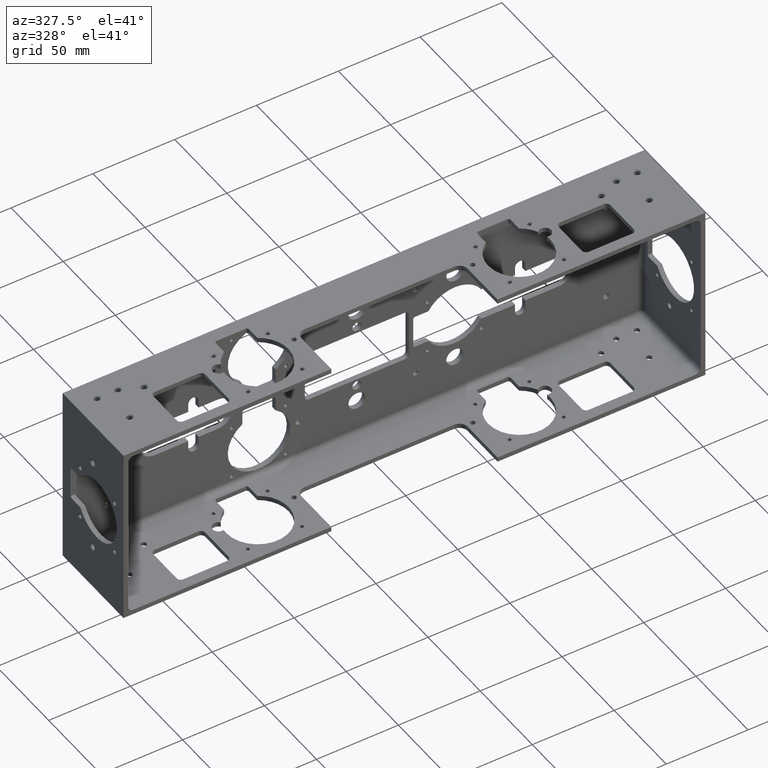
[diagram: clean part render]
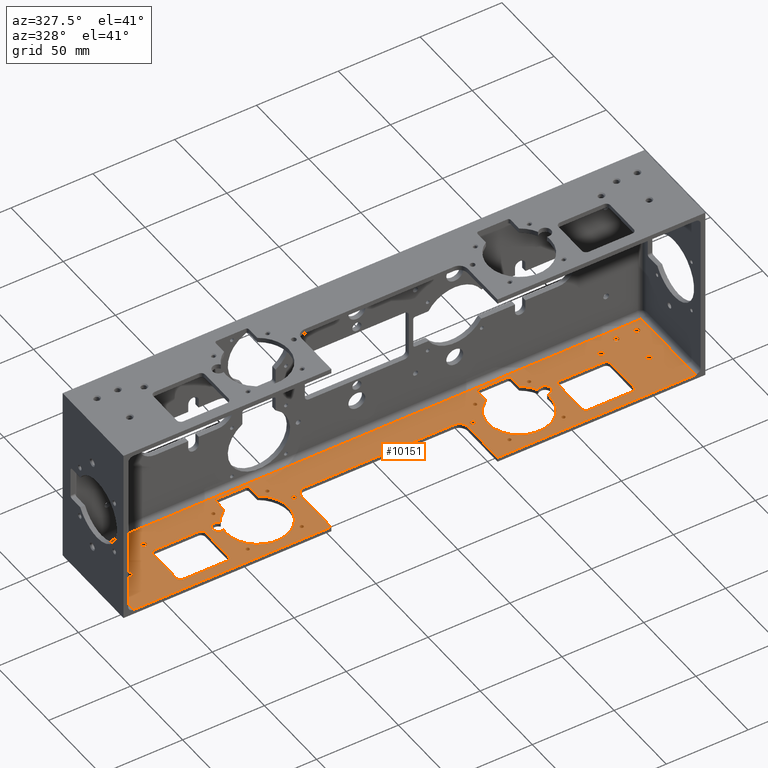
[diagram: same view with one face highlighted and labeled with its STEP entity id]
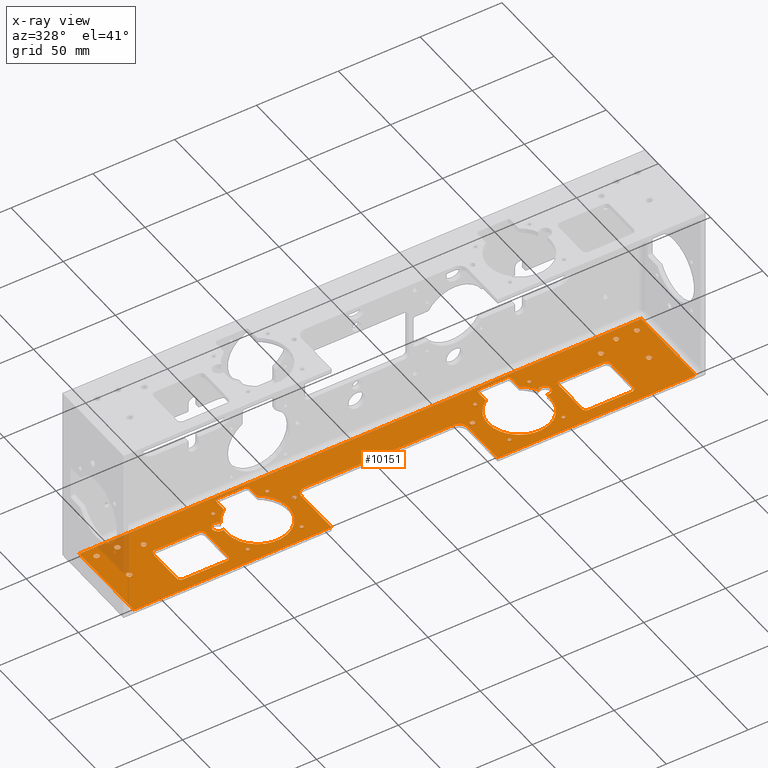
[diagram: x-ray of the same camera — body ghosted, the highlighted face saturated]
A machine part, auxiliary view. The second image highlights one B-rep face of the part: STEP entity #10151.
The next image is the same camera in x-ray: the body ghosted, the highlighted face saturated — about 3% of this face is hidden behind the body in this view.
In plain terms, the highlighted planar face has unit normal (0, 0, -1).
Its self-contained STEP definition (entity closure, byte-faithful):
#18 = DIRECTION ( 'NONE',  ( 0.0000000000000000000, -1.000000000000000000, 0.0000000000000000000 ) ) ;
#28 = CARTESIAN_POINT ( 'NONE',  ( 4.349999999999999600, -1.950000000000000000, -2.067000000000000200 ) ) ;
#36 = DIRECTION ( 'NONE',  ( -1.000000000000000000, 0.0000000000000000000, 0.0000000000000000000 ) ) ;
#72 = DIRECTION ( 'NONE',  ( 0.0000000000000000000, 0.0000000000000000000, -1.000000000000000000 ) ) ;
#83 = CARTESIAN_POINT ( 'NONE',  ( 6.000000000000000900, -0.5000000000000034400, -2.067000000000000200 ) ) ;
#113 = CARTESIAN_POINT ( 'NONE',  ( 2.749000000000000100, 14.38099551491481300, -2.067000000000000200 ) ) ;
#129 = CARTESIAN_POINT ( 'NONE',  ( -5.400000000000004800, -1.949999999999979500, -2.067000000000000200 ) ) ;
#136 = DIRECTION ( 'NONE',  ( -1.000000000000000000, 0.0000000000000000000, 0.0000000000000000000 ) ) ;
#150 = DIRECTION ( 'NONE',  ( 0.0000000000000000000, 0.0000000000000000000, -1.000000000000000000 ) ) ;
#155 = DIRECTION ( 'NONE',  ( 0.0000000000000000000, -1.000000000000000000, 0.0000000000000000000 ) ) ;
#156 = CARTESIAN_POINT ( 'NONE',  ( 3.148999999999999100, -1.315000000000001700, -2.067000000000000200 ) ) ;
#162 = DIRECTION ( 'NONE',  ( -1.000000000000000000, 0.0000000000000000000, 0.0000000000000000000 ) ) ;
#204 = DIRECTION ( 'NONE',  ( -1.000000000000000000, 0.0000000000000000000, 0.0000000000000000000 ) ) ;
#206 = DIRECTION ( 'NONE',  ( -1.000000000000000000, 0.0000000000000000000, 0.0000000000000000000 ) ) ;
#213 = CARTESIAN_POINT ( 'NONE',  ( 6.887000000000000500, -2.299999999999999800, -2.067000000000000200 ) ) ;
#219 = DIRECTION ( 'NONE',  ( 1.000000000000000000, 0.0000000000000000000, 0.0000000000000000000 ) ) ;
#220 = DIRECTION ( 'NONE',  ( 0.0000000000000000000, 0.0000000000000000000, -1.000000000000000000 ) ) ;
#227 = CARTESIAN_POINT ( 'NONE',  ( 6.250000000000000000, -1.344000000000003200, -2.067000000000000200 ) ) ;
#237 = CARTESIAN_POINT ( 'NONE',  ( -3.798999999999999900, -0.6650000000000000400, -2.067000000000000200 ) ) ;
#257 = CARTESIAN_POINT ( 'NONE',  ( 3.499000000000001000, -0.3650000000000014300, -2.067000000000000200 ) ) ;
#258 = CARTESIAN_POINT ( 'NONE',  ( 6.887000000000004000, -2.050000000000000300, -2.067000000000000200 ) ) ;
#260 = DIRECTION ( 'NONE',  ( 0.0000000000000000000, 0.0000000000000000000, -1.000000000000000000 ) ) ;
#266 = CARTESIAN_POINT ( 'NONE',  ( 3.930299999999999500, -1.065748031496065700, -2.067000000000000200 ) ) ;
#282 = DIRECTION ( 'NONE',  ( 0.0000000000000000000, 0.0000000000000000000, -1.000000000000000000 ) ) ;
#288 = DIRECTION ( 'NONE',  ( -1.000000000000000000, 0.0000000000000000000, 0.0000000000000000000 ) ) ;
#302 = DIRECTION ( 'NONE',  ( -1.000000000000000000, -2.601759993965967900E-016, 0.0000000000000000000 ) ) ;
#311 = DIRECTION ( 'NONE',  ( -1.000000000000000000, 0.0000000000000000000, 0.0000000000000000000 ) ) ;
#318 = DIRECTION ( 'NONE',  ( 0.0000000000000000000, 1.000000000000000000, 0.0000000000000000000 ) ) ;
#320 = CARTESIAN_POINT ( 'NONE',  ( 6.886999999999996000, -0.3150000000000036100, -2.067000000000000200 ) ) ;
#346 = CARTESIAN_POINT ( 'NONE',  ( -2.499000000000000100, -1.964999999999999900, -2.067000000000000200 ) ) ;
#349 = DIRECTION ( 'NONE',  ( 0.0000000000000000000, 0.0000000000000000000, -1.000000000000000000 ) ) ;
#368 = DIRECTION ( 'NONE',  ( -1.000000000000000000, 0.0000000000000000000, 0.0000000000000000000 ) ) ;
#388 = DIRECTION ( 'NONE',  ( -1.000000000000000000, 0.0000000000000000000, 0.0000000000000000000 ) ) ;
#396 = CARTESIAN_POINT ( 'NONE',  ( 2.798999999999999900, -0.3650000000000011600, -2.067000000000000200 ) ) ;
#398 = DIRECTION ( 'NONE',  ( 0.0000000000000000000, 0.0000000000000000000, -1.000000000000000000 ) ) ;
#405 = DIRECTION ( 'NONE',  ( -1.000000000000000000, 0.0000000000000000000, 0.0000000000000000000 ) ) ;
#434 = DIRECTION ( 'NONE',  ( -1.000000000000000000, 0.0000000000000000000, 0.0000000000000000000 ) ) ;
#438 = CARTESIAN_POINT ( 'NONE',  ( 3.148999999999999100, -1.315000000000001700, -2.067000000000000200 ) ) ;
#442 = DIRECTION ( 'NONE',  ( -1.000000000000000000, 0.0000000000000000000, 0.0000000000000000000 ) ) ;
#445 = DIRECTION ( 'NONE',  ( 0.0000000000000000000, 0.0000000000000000000, -1.000000000000000000 ) ) ;
#451 = DIRECTION ( 'NONE',  ( -1.000000000000000000, 0.0000000000000000000, 0.0000000000000000000 ) ) ;
#461 = DIRECTION ( 'NONE',  ( 0.0000000000000000000, 0.0000000000000000000, -1.000000000000000000 ) ) ;
#465 = DIRECTION ( 'NONE',  ( -1.000000000000000000, 0.0000000000000000000, 0.0000000000000000000 ) ) ;
#473 = DIRECTION ( 'NONE',  ( 0.0000000000000000000, 0.0000000000000000000, -1.000000000000000000 ) ) ;
#477 = CARTESIAN_POINT ( 'NONE',  ( 3.549000000000000800, 14.38099551491481300, -2.067000000000000200 ) ) ;
#492 = DIRECTION ( 'NONE',  ( 0.0000000000000000000, 0.0000000000000000000, -1.000000000000000000 ) ) ;
#513 = DIRECTION ( 'NONE',  ( -1.000000000000000000, 0.0000000000000000000, 0.0000000000000000000 ) ) ;
#526 = CARTESIAN_POINT ( 'NONE',  ( 2.498999999999999200, -1.964999999999999900, -2.067000000000000200 ) ) ;
#529 = CARTESIAN_POINT ( 'NONE',  ( 3.798999999999999000, -0.6650000000000000400, -2.067000000000000200 ) ) ;
#532 = DIRECTION ( 'NONE',  ( 1.000000000000000000, -2.926979993211706200E-016, 0.0000000000000000000 ) ) ;
#537 = CARTESIAN_POINT ( 'NONE',  ( 3.148999999999999100, -1.315000000000001700, -2.067000000000000200 ) ) ;
#540 = DIRECTION ( 'NONE',  ( 0.0000000000000000000, 0.0000000000000000000, -1.000000000000000000 ) ) ;
#543 = DIRECTION ( 'NONE',  ( 0.0000000000000000000, 1.000000000000000000, 0.0000000000000000000 ) ) ;
#546 = CARTESIAN_POINT ( 'NONE',  ( 4.250000000000000000, 14.38099551491481300, -2.067000000000000200 ) ) ;
#550 = CARTESIAN_POINT ( 'NONE',  ( 6.250000000000000000, -1.344000000000003200, -2.067000000000000200 ) ) ;
#566 = DIRECTION ( 'NONE',  ( 0.0000000000000000000, 0.0000000000000000000, -1.000000000000000000 ) ) ;
#569 = DIRECTION ( 'NONE',  ( 0.0000000000000000000, -1.000000000000000000, 0.0000000000000000000 ) ) ;
#589 = DIRECTION ( 'NONE',  ( 0.0000000000000000000, 0.0000000000000000000, -1.000000000000000000 ) ) ;
#610 = CARTESIAN_POINT ( 'NONE',  ( -4.349999999999999600, -1.070000000000000500, -2.067000000000000200 ) ) ;
#637 = CARTESIAN_POINT ( 'NONE',  ( -2.748999999999999700, 14.38099551491481300, -2.067000000000000200 ) ) ;
#649 = DIRECTION ( 'NONE',  ( 0.0000000000000000000, 0.0000000000000000000, -1.000000000000000000 ) ) ;
#668 = DIRECTION ( 'NONE',  ( 0.0000000000000000000, 0.0000000000000000000, -1.000000000000000000 ) ) ;
#675 = DIRECTION ( 'NONE',  ( -1.000000000000000000, 0.0000000000000000000, 0.0000000000000000000 ) ) ;
#692 = DIRECTION ( 'NONE',  ( 0.0000000000000000000, 0.0000000000000000000, -1.000000000000000000 ) ) ;
#695 = CARTESIAN_POINT ( 'NONE',  ( 5.500000000000000000, 14.38099551491481300, -2.067000000000000200 ) ) ;
#724 = CARTESIAN_POINT ( 'NONE',  ( -6.500000000000000000, -0.5000000000000000000, -2.067000000000000200 ) ) ;
#782 = DIRECTION ( 'NONE',  ( -1.000000000000000000, 0.0000000000000000000, 0.0000000000000000000 ) ) ;
#827 = ORIENTED_EDGE ( 'NONE', *, *, #13892, .T. ) ;
#870 = ORIENTED_EDGE ( 'NONE', *, *, #7307, .T. ) ;
#878 = ORIENTED_EDGE ( 'NONE', *, *, #7317, .T. ) ;
#884 = ORIENTED_EDGE ( 'NONE', *, *, #13923, .T. ) ;
#916 = ORIENTED_EDGE ( 'NONE', *, *, #7442, .T. ) ;
#919 = ORIENTED_EDGE ( 'NONE', *, *, #7270, .T. ) ;
#946 = ORIENTED_EDGE ( 'NONE', *, *, #7557, .T. ) ;
#949 = ORIENTED_EDGE ( 'NONE', *, *, #7844, .T. ) ;
#962 = ORIENTED_EDGE ( 'NONE', *, *, #7332, .T. ) ;
#987 = ORIENTED_EDGE ( 'NONE', *, *, #7746, .T. ) ;
#1063 = ORIENTED_EDGE ( 'NONE', *, *, #7180, .T. ) ;
#1076 = ORIENTED_EDGE ( 'NONE', *, *, #7726, .T. ) ;
#1114 = ORIENTED_EDGE ( 'NONE', *, *, #7404, .T. ) ;
#1126 = ORIENTED_EDGE ( 'NONE', *, *, #7057, .T. ) ;
#1129 = ORIENTED_EDGE ( 'NONE', *, *, #7105, .T. ) ;
#1134 = ORIENTED_EDGE ( 'NONE', *, *, #7227, .T. ) ;
#1181 = ORIENTED_EDGE ( 'NONE', *, *, #7592, .T. ) ;
#1195 = ORIENTED_EDGE ( 'NONE', *, *, #7603, .T. ) ;
#1232 = ORIENTED_EDGE ( 'NONE', *, *, #13818, .T. ) ;
#1237 = ORIENTED_EDGE ( 'NONE', *, *, #7328, .T. ) ;
#1248 = ORIENTED_EDGE ( 'NONE', *, *, #13893, .T. ) ;
#1249 = ORIENTED_EDGE ( 'NONE', *, *, #7376, .T. ) ;
#1271 = ORIENTED_EDGE ( 'NONE', *, *, #7602, .T. ) ;
#1295 = ORIENTED_EDGE ( 'NONE', *, *, #13907, .T. ) ;
#1301 = ORIENTED_EDGE ( 'NONE', *, *, #7543, .T. ) ;
#1308 = ORIENTED_EDGE ( 'NONE', *, *, #7666, .T. ) ;
#1327 = ORIENTED_EDGE ( 'NONE', *, *, #6981, .T. ) ;
#1374 = ORIENTED_EDGE ( 'NONE', *, *, #7495, .T. ) ;
#1379 = ORIENTED_EDGE ( 'NONE', *, *, #7576, .T. ) ;
#1385 = ORIENTED_EDGE ( 'NONE', *, *, #7677, .T. ) ;
#1386 = ORIENTED_EDGE ( 'NONE', *, *, #7574, .T. ) ;
#1405 = ORIENTED_EDGE ( 'NONE', *, *, #7770, .T. ) ;
#1407 = ORIENTED_EDGE ( 'NONE', *, *, #7089, .T. ) ;
#1424 = ORIENTED_EDGE ( 'NONE', *, *, #7296, .T. ) ;
#1426 = ORIENTED_EDGE ( 'NONE', *, *, #13894, .T. ) ;
#1427 = ORIENTED_EDGE ( 'NONE', *, *, #7191, .T. ) ;
#1429 = ORIENTED_EDGE ( 'NONE', *, *, #7559, .T. ) ;
#1434 = ORIENTED_EDGE ( 'NONE', *, *, #7067, .T. ) ;
#1435 = ORIENTED_EDGE ( 'NONE', *, *, #7534, .T. ) ;
#1436 = ORIENTED_EDGE ( 'NONE', *, *, #7398, .T. ) ;
#1437 = ORIENTED_EDGE ( 'NONE', *, *, #7348, .T. ) ;
#1504 = ORIENTED_EDGE ( 'NONE', *, *, #7073, .T. ) ;
#1526 = ORIENTED_EDGE ( 'NONE', *, *, #7533, .T. ) ;
#1586 = ORIENTED_EDGE ( 'NONE', *, *, #13887, .T. ) ;
#1636 = ORIENTED_EDGE ( 'NONE', *, *, #7372, .T. ) ;
#1645 = ORIENTED_EDGE ( 'NONE', *, *, #7504, .T. ) ;
#1676 = ORIENTED_EDGE ( 'NONE', *, *, #7207, .T. ) ;
#1679 = ORIENTED_EDGE ( 'NONE', *, *, #13924, .T. ) ;
#1682 = ORIENTED_EDGE ( 'NONE', *, *, #13821, .T. ) ;
#1686 = ORIENTED_EDGE ( 'NONE', *, *, #7094, .T. ) ;
#1687 = ORIENTED_EDGE ( 'NONE', *, *, #7566, .T. ) ;
#1692 = ORIENTED_EDGE ( 'NONE', *, *, #14106, .T. ) ;
#1698 = ORIENTED_EDGE ( 'NONE', *, *, #7355, .T. ) ;
#1714 = ORIENTED_EDGE ( 'NONE', *, *, #7483, .T. ) ;
#1725 = ORIENTED_EDGE ( 'NONE', *, *, #7635, .T. ) ;
#1730 = ORIENTED_EDGE ( 'NONE', *, *, #7789, .T. ) ;
#1751 = CARTESIAN_POINT ( 'NONE',  ( 5.500000000000000000, -1.949999999999999100, -2.067000000000000200 ) ) ;
#1753 = CARTESIAN_POINT ( 'NONE',  ( -2.000000000000000000, -2.299999999999999400, -2.067000000000000200 ) ) ;
#1757 = CARTESIAN_POINT ( 'NONE',  ( -2.000000000000000400, -1.169999999999998800, -2.067000000000000200 ) ) ;
#1774 = CARTESIAN_POINT ( 'NONE',  ( -3.890615323850029000, -1.203166590721658000, -2.067000000000001100 ) ) ;
#1805 = CARTESIAN_POINT ( 'NONE',  ( 3.499000000000001000, -0.3150000000000014500, -2.067000000000001100 ) ) ;
#1807 = CARTESIAN_POINT ( 'NONE',  ( -2.798999999999999900, -0.3149999999999996700, -2.067000000000001100 ) ) ;
#1815 = CARTESIAN_POINT ( 'NONE',  ( -5.400000000000003900, -2.049999999999979400, -2.067000000000000200 ) ) ;
#1821 = CARTESIAN_POINT ( 'NONE',  ( 4.350000000000000500, -2.049999999999999800, -2.067000000000000200 ) ) ;
#1827 = CARTESIAN_POINT ( 'NONE',  ( 4.349999999999999600, -0.9699999999999995300, -2.067000000000000200 ) ) ;
#1829 = CARTESIAN_POINT ( 'NONE',  ( -6.762000000000000500, -0.2500000000000000600, -2.067000000000000200 ) ) ;
#1836 = CARTESIAN_POINT ( 'NONE',  ( -5.399999999999999500, -0.9700000000000009700, -2.067000000000000200 ) ) ;
#1858 = CARTESIAN_POINT ( 'NONE',  ( -4.250000000000004400, -1.949999999999983300, -2.067000000000000200 ) ) ;
#1860 = CARTESIAN_POINT ( 'NONE',  ( 1.799999999999999400, -0.9699999999999989700, -2.067000000000000200 ) ) ;
#1888 = CARTESIAN_POINT ( 'NONE',  ( -4.350000000000005000, -2.049999999999983400, -2.067000000000000200 ) ) ;
#1935 = CARTESIAN_POINT ( 'NONE',  ( -2.749000000000000100, -0.6805711229775243100, -2.067000000000001100 ) ) ;
#1946 = CARTESIAN_POINT ( 'NONE',  ( -5.500000000000004400, -1.949999999999978400, -2.067000000000000200 ) ) ;
#1960 = CARTESIAN_POINT ( 'NONE',  ( 6.500000000000000000, -0.5000000000000036600, -2.067000000000000200 ) ) ;
#1961 = DIRECTION ( 'NONE',  ( 0.0000000000000000000, 0.0000000000000000000, -1.000000000000000000 ) ) ;
#1963 = DIRECTION ( 'NONE',  ( -1.000000000000000000, 0.0000000000000000000, 0.0000000000000000000 ) ) ;
#1971 = CARTESIAN_POINT ( 'NONE',  ( -2.499000000000000100, -0.6650000000000000400, -2.067000000000000200 ) ) ;
#1984 = DIRECTION ( 'NONE',  ( 0.0000000000000000000, 0.0000000000000000000, -1.000000000000000000 ) ) ;
#1986 = DIRECTION ( 'NONE',  ( -1.000000000000000000, 0.0000000000000000000, 0.0000000000000000000 ) ) ;
#1990 = CARTESIAN_POINT ( 'NONE',  ( -5.500000000000000000, -0.7086614173228346100, -2.067000000000000200 ) ) ;
#2051 = DIRECTION ( 'NONE',  ( 0.0000000000000000000, 0.0000000000000000000, -1.000000000000000000 ) ) ;
#2056 = DIRECTION ( 'NONE',  ( -1.000000000000000000, 0.0000000000000000000, 0.0000000000000000000 ) ) ;
#2140 = DIRECTION ( 'NONE',  ( -1.000000000000000000, -0.0000000000000000000, -0.0000000000000000000 ) ) ;
#2190 = CARTESIAN_POINT ( 'NONE',  ( 2.749000000000000100, -0.6805711229775256400, -2.067000000000001100 ) ) ;
#2645 = CARTESIAN_POINT ( 'NONE',  ( -6.887000000000000500, -0.2500000000000000600, -2.067000000000000200 ) ) ;
#2692 = DIRECTION ( 'NONE',  ( 0.0000000000000000000, 0.0000000000000000000, -1.000000000000000000 ) ) ;
#2693 = CARTESIAN_POINT ( 'NONE',  ( -2.150000000000000400, -1.120669297480314700, -2.067000000000000200 ) ) ;
#2703 = CARTESIAN_POINT ( 'NONE',  ( 1.999999999999990200, 14.38099551491481200, -2.067000000000000200 ) ) ;
#2705 = DIRECTION ( 'NONE',  ( 6.162063143603598100E-016, -1.000000000000000000, 0.0000000000000000000 ) ) ;
#2711 = DIRECTION ( 'NONE',  ( -1.000000000000000000, 0.0000000000000000000, 0.0000000000000000000 ) ) ;
#2728 = DIRECTION ( 'NONE',  ( -1.000000000000000000, 0.0000000000000000000, 0.0000000000000000000 ) ) ;
#2731 = DIRECTION ( 'NONE',  ( 0.0000000000000000000, 0.0000000000000000000, -1.000000000000000000 ) ) ;
#2738 = CARTESIAN_POINT ( 'NONE',  ( 6.887000000000004000, -0.9699999999999975300, -2.067000000000000200 ) ) ;
#2740 = DIRECTION ( 'NONE',  ( 1.000000000000000000, 2.731847993664263200E-016, 0.0000000000000000000 ) ) ;
#2742 = DIRECTION ( 'NONE',  ( 0.0000000000000000000, 0.0000000000000000000, -1.000000000000000000 ) ) ;
#2744 = DIRECTION ( 'NONE',  ( 0.0000000000000000000, 0.0000000000000000000, -1.000000000000000000 ) ) ;
#2747 = DIRECTION ( 'NONE',  ( 0.0000000000000000000, -1.000000000000000000, 0.0000000000000000000 ) ) ;
#2750 = CARTESIAN_POINT ( 'NONE',  ( -3.499000000000001000, -0.3149999999999995000, -2.067000000000001100 ) ) ;
#2758 = DIRECTION ( 'NONE',  ( 0.0000000000000000000, 0.0000000000000000000, -1.000000000000000000 ) ) ;
#2759 = DIRECTION ( 'NONE',  ( -1.000000000000000000, 0.0000000000000000000, 0.0000000000000000000 ) ) ;
#2768 = CARTESIAN_POINT ( 'NONE',  ( -3.149000000000000000, -1.314999999999999900, -2.067000000000000200 ) ) ;
#2769 = DIRECTION ( 'NONE',  ( -1.000000000000000000, 0.0000000000000000000, 0.0000000000000000000 ) ) ;
#2774 = CARTESIAN_POINT ( 'NONE',  ( -3.930300000000000300, -1.065748031496063500, -2.067000000000000200 ) ) ;
#2783 = CARTESIAN_POINT ( 'NONE',  ( -3.149000000000000000, -1.314999999999999900, -2.067000000000000200 ) ) ;
#2787 = CARTESIAN_POINT ( 'NONE',  ( -6.762000000000000500, -2.299999999999998900, -2.067000000000000200 ) ) ;
#2788 = CARTESIAN_POINT ( 'NONE',  ( -3.798999999999999900, -1.964999999999999900, -2.067000000000000200 ) ) ;
#2791 = CARTESIAN_POINT ( 'NONE',  ( -3.499000000000001000, -0.3649999999999995500, -2.067000000000000200 ) ) ;
#2809 = CARTESIAN_POINT ( 'NONE',  ( 3.549000000000000800, -0.3650000000000014300, -2.067000000000001100 ) ) ;
#2811 = DIRECTION ( 'NONE',  ( -1.000000000000000000, 0.0000000000000000000, 0.0000000000000000000 ) ) ;
#2820 = DIRECTION ( 'NONE',  ( 0.0000000000000000000, 0.0000000000000000000, -1.000000000000000000 ) ) ;
#2827 = DIRECTION ( 'NONE',  ( -1.000000000000000000, 0.0000000000000000000, 0.0000000000000000000 ) ) ;
#2832 = PLANE ( 'NONE',  #12685 ) ;
#2838 = DIRECTION ( 'NONE',  ( -1.000000000000000000, 0.0000000000000000000, 0.0000000000000000000 ) ) ;
#2857 = DIRECTION ( 'NONE',  ( 0.0000000000000000000, 0.0000000000000000000, -1.000000000000000000 ) ) ;
#2861 = CARTESIAN_POINT ( 'NONE',  ( 6.887000000000000500, 14.38099551491481300, -2.067000000000000200 ) ) ;
#2871 = CARTESIAN_POINT ( 'NONE',  ( 2.398999999999999600, -1.315000000000001700, -2.067000000000000200 ) ) ;
#2939 = LINE ( 'NONE', #213, #2959 ) ;
#2941 = CIRCLE ( 'NONE', #13752, 0.04449999999999948400 ) ;
#2959 = VECTOR ( 'NONE', #219, 39.37007874015748100 ) ;
#2974 = CIRCLE ( 'NONE', #13972, 0.04449999999999921400 ) ;
#2990 = CIRCLE ( 'NONE', #13966, 0.04449999999999921400 ) ;
#3014 = CIRCLE ( 'NONE', #13721, 0.06799999999999938000 ) ;
#3073 = CIRCLE ( 'NONE', #13383, 0.06799999999999938000 ) ;
#3101 = CIRCLE ( 'NONE', #13379, 0.06799999999999938000 ) ;
#3155 = CIRCLE ( 'NONE', #13712, 0.1000000000000000200 ) ;
#3157 = VECTOR ( 'NONE', #155, 39.37007874015748100 ) ;
#3176 = CIRCLE ( 'NONE', #13763, 0.7499999999999996700 ) ;
#3179 = CIRCLE ( 'NONE', #13417, 0.1000000000000000200 ) ;
#3240 = VECTOR ( 'NONE', #4640, 39.37007874015748100 ) ;
#3249 = LINE ( 'NONE', #258, #3794 ) ;
#3287 = CIRCLE ( 'NONE', #13951, 0.09999999999999947800 ) ;
#3308 = CIRCLE ( 'NONE', #14055, 0.7499999999999998900 ) ;
#3369 = CIRCLE ( 'NONE', #13960, 0.04449999999999921400 ) ;
#3393 = VECTOR ( 'NONE', #4512, 39.37007874015748100 ) ;
#3411 = LINE ( 'NONE', #4654, #3393 ) ;
#3436 = CIRCLE ( 'NONE', #13941, 0.06799999999999938000 ) ;
#3477 = LINE ( 'NONE', #695, #3157 ) ;
#3496 = CIRCLE ( 'NONE', #13404, 0.04449999999999948400 ) ;
#3518 = CIRCLE ( 'NONE', #13426, 0.04449999999999948400 ) ;
#3534 = CIRCLE ( 'NONE', #13932, 0.04999999999999973900 ) ;
#3559 = LINE ( 'NONE', #637, #3819 ) ;
#3568 = CIRCLE ( 'NONE', #13710, 0.04999999999999973900 ) ;
#3571 = CIRCLE ( 'NONE', #13711, 0.7499999999999996700 ) ;
#3597 = VECTOR ( 'NONE', #532, 39.37007874015748100 ) ;
#3617 = CIRCLE ( 'NONE', #13719, 0.09999999999999947800 ) ;
#3644 = CIRCLE ( 'NONE', #13761, 0.1430340307086612200 ) ;
#3647 = LINE ( 'NONE', #113, #3775 ) ;
#3729 = CIRCLE ( 'NONE', #13380, 0.04449999999999921400 ) ;
#3735 = LINE ( 'NONE', #546, #3808 ) ;
#3770 = LINE ( 'NONE', #4502, #3240 ) ;
#3775 = VECTOR ( 'NONE', #318, 39.37007874015748100 ) ;
#3778 = VECTOR ( 'NONE', #18, 39.37007874015748100 ) ;
#3794 = VECTOR ( 'NONE', #302, 39.37007874015748100 ) ;
#3802 = CIRCLE ( 'NONE', #13430, 0.06799999999999938000 ) ;
#3808 = VECTOR ( 'NONE', #543, 39.37007874015748100 ) ;
#3819 = VECTOR ( 'NONE', #569, 39.37007874015748100 ) ;
#3821 = CIRCLE ( 'NONE', #13987, 0.7500000000000002200 ) ;
#3839 = LINE ( 'NONE', #320, #3597 ) ;
#3849 = LINE ( 'NONE', #477, #3778 ) ;
#3880 = CIRCLE ( 'NONE', #12657, 0.04449999999999948400 ) ;
#3896 = CIRCLE ( 'NONE', #12650, 0.7499999999999998900 ) ;
#3898 = VECTOR ( 'NONE', #2140, 39.37007874015748100 ) ;
#3906 = CIRCLE ( 'NONE', #12432, 0.2000000000000000400 ) ;
#3915 = CIRCLE ( 'NONE', #12625, 0.05999999999999990800 ) ;
#3918 = CIRCLE ( 'NONE', #12588, 0.04999999999999973900 ) ;
#3944 = CIRCLE ( 'NONE', #12649, 0.1430340307086612200 ) ;
#3955 = CIRCLE ( 'NONE', #12636, 0.7499999999999998900 ) ;
#3964 = LINE ( 'NONE', #2738, #4070 ) ;
#4015 = CIRCLE ( 'NONE', #12425, 0.2000000000000000400 ) ;
#4039 = CIRCLE ( 'NONE', #12616, 0.04999999999999973900 ) ;
#4040 = LINE ( 'NONE', #13091, #4068 ) ;
#4058 = CIRCLE ( 'NONE', #12618, 0.05999999999999990800 ) ;
#4068 = VECTOR ( 'NONE', #13093, 39.37007874015748100 ) ;
#4070 = VECTOR ( 'NONE', #2740, 39.37007874015748100 ) ;
#4109 = DIRECTION ( 'NONE',  ( 0.0000000000000000000, 0.0000000000000000000, -1.000000000000000000 ) ) ;
#4116 = DIRECTION ( 'NONE',  ( -1.000000000000000000, 0.0000000000000000000, 0.0000000000000000000 ) ) ;
#4121 = CARTESIAN_POINT ( 'NONE',  ( -6.000000000000000900, -0.5000000000000000000, -2.067000000000000200 ) ) ;
#4146 = VECTOR ( 'NONE', #12718, 39.37007874015748100 ) ;
#4153 = LINE ( 'NONE', #2645, #3898 ) ;
#4159 = DIRECTION ( 'NONE',  ( 0.0000000000000000000, 0.0000000000000000000, -1.000000000000000000 ) ) ;
#4161 = DIRECTION ( 'NONE',  ( -1.000000000000000000, 0.0000000000000000000, 0.0000000000000000000 ) ) ;
#4163 = CARTESIAN_POINT ( 'NONE',  ( -5.500000000000000000, -0.7086614173228346100, -2.067000000000000200 ) ) ;
#4196 = CARTESIAN_POINT ( 'NONE',  ( 2.498999999999999200, -0.6650000000000000400, -2.067000000000000200 ) ) ;
#4202 = LINE ( 'NONE', #12721, #4146 ) ;
#4206 = DIRECTION ( 'NONE',  ( -1.000000000000000000, 0.0000000000000000000, 0.0000000000000000000 ) ) ;
#4209 = DIRECTION ( 'NONE',  ( 0.0000000000000000000, 0.0000000000000000000, -1.000000000000000000 ) ) ;
#4217 = CARTESIAN_POINT ( 'NONE',  ( -4.350000000000004100, -1.949999999999983500, -2.067000000000000200 ) ) ;
#4230 = CIRCLE ( 'NONE', #12563, 0.06799999999999938000 ) ;
#4290 = DIRECTION ( 'NONE',  ( 0.0000000000000000000, 0.0000000000000000000, -1.000000000000000000 ) ) ;
#4296 = DIRECTION ( 'NONE',  ( -1.000000000000000000, 0.0000000000000000000, 0.0000000000000000000 ) ) ;
#4299 = DIRECTION ( 'NONE',  ( 0.0000000000000000000, 0.0000000000000000000, -1.000000000000000000 ) ) ;
#4302 = CARTESIAN_POINT ( 'NONE',  ( 5.500000000000000000, -0.7086614173228345000, -2.067000000000000200 ) ) ;
#4326 = DIRECTION ( 'NONE',  ( -1.000000000000000000, 0.0000000000000000000, 0.0000000000000000000 ) ) ;
#4328 = DIRECTION ( 'NONE',  ( 0.0000000000000000000, 0.0000000000000000000, -1.000000000000000000 ) ) ;
#4352 = CARTESIAN_POINT ( 'NONE',  ( 3.798999999999999000, -1.964999999999999900, -2.067000000000000200 ) ) ;
#4355 = VECTOR ( 'NONE', #2747, 39.37007874015748100 ) ;
#4381 = VECTOR ( 'NONE', #13032, 39.37007874015748100 ) ;
#4383 = CARTESIAN_POINT ( 'NONE',  ( -2.499000000000000100, -0.6650000000000000400, -2.067000000000000200 ) ) ;
#4384 = LINE ( 'NONE', #12918, #4381 ) ;
#4419 = DIRECTION ( 'NONE',  ( -1.000000000000000000, 0.0000000000000000000, 0.0000000000000000000 ) ) ;
#4446 = CARTESIAN_POINT ( 'NONE',  ( -6.250000000000000000, -1.343999999999999900, -2.067000000000000200 ) ) ;
#4450 = LINE ( 'NONE', #2787, #4355 ) ;
#4462 = DIRECTION ( 'NONE',  ( 0.0000000000000000000, 0.0000000000000000000, -1.000000000000000000 ) ) ;
#4465 = DIRECTION ( 'NONE',  ( 0.0000000000000000000, 0.0000000000000000000, -1.000000000000000000 ) ) ;
#4470 = DIRECTION ( 'NONE',  ( 0.0000000000000000000, 0.0000000000000000000, -1.000000000000000000 ) ) ;
#4473 = DIRECTION ( 'NONE',  ( 0.0000000000000000000, 0.0000000000000000000, -1.000000000000000000 ) ) ;
#4502 = CARTESIAN_POINT ( 'NONE',  ( 6.887000000000002200, -0.9699999999999997500, -2.067000000000000200 ) ) ;
#4512 = DIRECTION ( 'NONE',  ( -2.054021047867867100E-016, 1.000000000000000000, 0.0000000000000000000 ) ) ;
#4524 = DIRECTION ( 'NONE',  ( -1.000000000000000000, 0.0000000000000000000, 0.0000000000000000000 ) ) ;
#4525 = DIRECTION ( 'NONE',  ( 0.0000000000000000000, 0.0000000000000000000, -1.000000000000000000 ) ) ;
#4573 = CARTESIAN_POINT ( 'NONE',  ( -6.250000000000000000, -1.343999999999999900, -2.067000000000000200 ) ) ;
#4577 = DIRECTION ( 'NONE',  ( 4.966996352116969300E-015, 1.000000000000000000, 0.0000000000000000000 ) ) ;
#4578 = CARTESIAN_POINT ( 'NONE',  ( -5.499999999999921800, 14.38099551491487400, -2.067000000000000200 ) ) ;
#4619 = CARTESIAN_POINT ( 'NONE',  ( 2.498999999999999200, -1.964999999999999900, -2.067000000000000200 ) ) ;
#4640 = DIRECTION ( 'NONE',  ( 1.000000000000000000, 1.300879996982983200E-016, 0.0000000000000000000 ) ) ;
#4644 = CARTESIAN_POINT ( 'NONE',  ( 2.498999999999999200, -0.6650000000000000400, -2.067000000000000200 ) ) ;
#4654 = CARTESIAN_POINT ( 'NONE',  ( -2.000000000000004000, 14.38099551491481200, -2.067000000000000200 ) ) ;
#4655 = DIRECTION ( 'NONE',  ( -1.000000000000000000, 0.0000000000000000000, 0.0000000000000000000 ) ) ;
#4657 = DIRECTION ( 'NONE',  ( -1.000000000000000000, 0.0000000000000000000, 0.0000000000000000000 ) ) ;
#4660 = CARTESIAN_POINT ( 'NONE',  ( 6.500000000000000000, -0.5000000000000036600, -2.067000000000000200 ) ) ;
#4676 = DIRECTION ( 'NONE',  ( -1.000000000000000000, 0.0000000000000000000, 0.0000000000000000000 ) ) ;
#4691 = CARTESIAN_POINT ( 'NONE',  ( -3.149000000000000000, -1.314999999999999900, -2.067000000000000200 ) ) ;
#4737 = DIRECTION ( 'NONE',  ( 0.0000000000000000000, 0.0000000000000000000, -1.000000000000000000 ) ) ;
#4749 = DIRECTION ( 'NONE',  ( -1.000000000000000000, 0.0000000000000000000, 0.0000000000000000000 ) ) ;
#4750 = DIRECTION ( 'NONE',  ( 0.0000000000000000000, 0.0000000000000000000, -1.000000000000000000 ) ) ;
#4751 = CARTESIAN_POINT ( 'NONE',  ( -3.798999999999999900, -0.6650000000000000400, -2.067000000000000200 ) ) ;
#4756 = DIRECTION ( 'NONE',  ( 0.0000000000000000000, 0.0000000000000000000, -1.000000000000000000 ) ) ;
#4757 = DIRECTION ( 'NONE',  ( -1.000000000000000000, 0.0000000000000000000, 0.0000000000000000000 ) ) ;
#4760 = CARTESIAN_POINT ( 'NONE',  ( -3.149000000000000000, -1.314999999999999900, -2.067000000000000200 ) ) ;
#4762 = DIRECTION ( 'NONE',  ( 0.0000000000000000000, 0.0000000000000000000, -1.000000000000000000 ) ) ;
#4763 = DIRECTION ( 'NONE',  ( -1.000000000000000000, 0.0000000000000000000, 0.0000000000000000000 ) ) ;
#4797 = DIRECTION ( 'NONE',  ( -1.000000000000000000, 3.902639990948952200E-015, 0.0000000000000000000 ) ) ;
#4808 = CARTESIAN_POINT ( 'NONE',  ( 5.400000000000000400, -1.949999999999999700, -2.067000000000000200 ) ) ;
#4817 = CARTESIAN_POINT ( 'NONE',  ( 3.148999999999999100, -1.315000000000001700, -2.067000000000000200 ) ) ;
#4826 = DIRECTION ( 'NONE',  ( 0.0000000000000000000, 0.0000000000000000000, -1.000000000000000000 ) ) ;
#4828 = DIRECTION ( 'NONE',  ( -1.000000000000000000, 0.0000000000000000000, 0.0000000000000000000 ) ) ;
#4843 = DIRECTION ( 'NONE',  ( 0.0000000000000000000, 0.0000000000000000000, -1.000000000000000000 ) ) ;
#4863 = CARTESIAN_POINT ( 'NONE',  ( 3.798999999999999000, -1.964999999999999900, -2.067000000000000200 ) ) ;
#4885 = DIRECTION ( 'NONE',  ( 0.0000000000000000000, 0.0000000000000000000, -1.000000000000000000 ) ) ;
#4905 = DIRECTION ( 'NONE',  ( -1.000000000000000000, 0.0000000000000000000, 0.0000000000000000000 ) ) ;
#4906 = DIRECTION ( 'NONE',  ( -1.000000000000000000, 0.0000000000000000000, 0.0000000000000000000 ) ) ;
#4907 = DIRECTION ( 'NONE',  ( 0.0000000000000000000, 0.0000000000000000000, -1.000000000000000000 ) ) ;
#4911 = CARTESIAN_POINT ( 'NONE',  ( -6.000000000000000900, -0.5000000000000000000, -2.067000000000000200 ) ) ;
#4916 = CARTESIAN_POINT ( 'NONE',  ( -3.798999999999999900, -1.964999999999999900, -2.067000000000000200 ) ) ;
#4950 = DIRECTION ( 'NONE',  ( -1.000000000000000000, 0.0000000000000000000, 0.0000000000000000000 ) ) ;
#4956 = DIRECTION ( 'NONE',  ( 1.000000000000000000, 1.300879996982983200E-016, 0.0000000000000000000 ) ) ;
#4958 = DIRECTION ( 'NONE',  ( -1.000000000000000000, 0.0000000000000000000, 0.0000000000000000000 ) ) ;
#4961 = CARTESIAN_POINT ( 'NONE',  ( 6.887000000000002200, -0.9699999999999975300, -2.067000000000000200 ) ) ;
#5024 = DIRECTION ( 'NONE',  ( 0.0000000000000000000, 0.0000000000000000000, -1.000000000000000000 ) ) ;
#5041 = DIRECTION ( 'NONE',  ( -1.000000000000000000, 0.0000000000000000000, 0.0000000000000000000 ) ) ;
#5043 = CARTESIAN_POINT ( 'NONE',  ( -2.499000000000000100, -1.964999999999999900, -2.067000000000000200 ) ) ;
#5044 = DIRECTION ( 'NONE',  ( 0.0000000000000000000, 0.0000000000000000000, -1.000000000000000000 ) ) ;
#5052 = DIRECTION ( 'NONE',  ( -1.000000000000000000, 0.0000000000000000000, 0.0000000000000000000 ) ) ;
#5095 = CARTESIAN_POINT ( 'NONE',  ( 5.500000000000000000, -0.7086614173228345000, -2.067000000000000200 ) ) ;
#5100 = CARTESIAN_POINT ( 'NONE',  ( -2.150000000000000400, -1.120669297480314700, -2.067000000000000200 ) ) ;
#5118 = DIRECTION ( 'NONE',  ( -1.000000000000000000, 0.0000000000000000000, 0.0000000000000000000 ) ) ;
#5146 = DIRECTION ( 'NONE',  ( -1.000000000000000000, 0.0000000000000000000, 0.0000000000000000000 ) ) ;
#5150 = DIRECTION ( 'NONE',  ( 0.0000000000000000000, 0.0000000000000000000, -1.000000000000000000 ) ) ;
#5153 = CARTESIAN_POINT ( 'NONE',  ( 6.886999999999935600, -2.050000000000028700, -2.067000000000000200 ) ) ;
#5169 = DIRECTION ( 'NONE',  ( -1.000000000000000000, 0.0000000000000000000, 0.0000000000000000000 ) ) ;
#5171 = DIRECTION ( 'NONE',  ( 0.0000000000000000000, 0.0000000000000000000, -1.000000000000000000 ) ) ;
#5340 = ORIENTED_EDGE ( 'NONE', *, *, #7365, .T. ) ;
#5382 = ORIENTED_EDGE ( 'NONE', *, *, #14224, .T. ) ;
#5485 = ORIENTED_EDGE ( 'NONE', *, *, #13629, .T. ) ;
#5544 = ORIENTED_EDGE ( 'NONE', *, *, #13633, .T. ) ;
#5565 = ORIENTED_EDGE ( 'NONE', *, *, #7071, .T. ) ;
#5566 = EDGE_LOOP ( 'NONE', ( #8899, #1427 ) ) ;
#5631 = ORIENTED_EDGE ( 'NONE', *, *, #14082, .T. ) ;
#5645 = EDGE_LOOP ( 'NONE', ( #5891, #5939 ) ) ;
#5657 = EDGE_LOOP ( 'NONE', ( #5544, #6224 ) ) ;
#5715 = ORIENTED_EDGE ( 'NONE', *, *, #7436, .T. ) ;
#5806 = EDGE_LOOP ( 'NONE', ( #5340, #1676 ) ) ;
#5818 = EDGE_LOOP ( 'NONE', ( #6383, #5631 ) ) ;
#5876 = ORIENTED_EDGE ( 'NONE', *, *, #7815, .T. ) ;
#5887 = ORIENTED_EDGE ( 'NONE', *, *, #14175, .T. ) ;
#5891 = ORIENTED_EDGE ( 'NONE', *, *, #7608, .T. ) ;
#5921 = ORIENTED_EDGE ( 'NONE', *, *, #13910, .T. ) ;
#5939 = ORIENTED_EDGE ( 'NONE', *, *, #14166, .T. ) ;
#5943 = ORIENTED_EDGE ( 'NONE', *, *, #13898, .T. ) ;
#5948 = ORIENTED_EDGE ( 'NONE', *, *, #14205, .T. ) ;
#6200 = ORIENTED_EDGE ( 'NONE', *, *, #13899, .T. ) ;
#6224 = ORIENTED_EDGE ( 'NONE', *, *, #7238, .T. ) ;
#6383 = ORIENTED_EDGE ( 'NONE', *, *, #14185, .T. ) ;
#6425 = VERTEX_POINT ( 'NONE', #11819 ) ;
#6431 = VERTEX_POINT ( 'NONE', #11856 ) ;
#6449 = VERTEX_POINT ( 'NONE', #11756 ) ;
#6453 = VERTEX_POINT ( 'NONE', #11754 ) ;
#6455 = VERTEX_POINT ( 'NONE', #12120 ) ;
#6477 = VERTEX_POINT ( 'NONE', #12207 ) ;
#6479 = VERTEX_POINT ( 'NONE', #12183 ) ;
#6496 = VERTEX_POINT ( 'NONE', #12313 ) ;
#6497 = VERTEX_POINT ( 'NONE', #11939 ) ;
#6504 = VERTEX_POINT ( 'NONE', #12101 ) ;
#6508 = VERTEX_POINT ( 'NONE', #11629 ) ;
#6531 = VERTEX_POINT ( 'NONE', #12065 ) ;
#6536 = VERTEX_POINT ( 'NONE', #12138 ) ;
#6555 = VERTEX_POINT ( 'NONE', #12172 ) ;
#6558 = VERTEX_POINT ( 'NONE', #12013 ) ;
#6570 = VERTEX_POINT ( 'NONE', #11721 ) ;
#6586 = VERTEX_POINT ( 'NONE', #11812 ) ;
#6592 = VERTEX_POINT ( 'NONE', #11811 ) ;
#6595 = VERTEX_POINT ( 'NONE', #11516 ) ;
#6610 = VERTEX_POINT ( 'NONE', #12076 ) ;
#6614 = VERTEX_POINT ( 'NONE', #11784 ) ;
#6620 = VERTEX_POINT ( 'NONE', #12045 ) ;
#6621 = VERTEX_POINT ( 'NONE', #12108 ) ;
#6623 = VERTEX_POINT ( 'NONE', #12106 ) ;
#6625 = VERTEX_POINT ( 'NONE', #11841 ) ;
#6627 = VERTEX_POINT ( 'NONE', #12214 ) ;
#6628 = VERTEX_POINT ( 'NONE', #12014 ) ;
#6634 = VERTEX_POINT ( 'NONE', #11800 ) ;
#6639 = VERTEX_POINT ( 'NONE', #11795 ) ;
#6644 = VERTEX_POINT ( 'NONE', #11792 ) ;
#6651 = VERTEX_POINT ( 'NONE', #11708 ) ;
#6656 = VERTEX_POINT ( 'NONE', #12247 ) ;
#6667 = VERTEX_POINT ( 'NONE', #11960 ) ;
#6682 = VERTEX_POINT ( 'NONE', #11634 ) ;
#6697 = VERTEX_POINT ( 'NONE', #11716 ) ;
#6705 = VERTEX_POINT ( 'NONE', #11665 ) ;
#6708 = VERTEX_POINT ( 'NONE', #11681 ) ;
#6709 = VERTEX_POINT ( 'NONE', #11652 ) ;
#6712 = VERTEX_POINT ( 'NONE', #11588 ) ;
#6741 = VERTEX_POINT ( 'NONE', #11931 ) ;
#6743 = VERTEX_POINT ( 'NONE', #11920 ) ;
#6748 = VERTEX_POINT ( 'NONE', #11999 ) ;
#6758 = VERTEX_POINT ( 'NONE', #12257 ) ;
#6764 = VERTEX_POINT ( 'NONE', #12235 ) ;
#6766 = VERTEX_POINT ( 'NONE', #11740 ) ;
#6781 = VERTEX_POINT ( 'NONE', #12088 ) ;
#6814 = VERTEX_POINT ( 'NONE', #12046 ) ;
#6824 = VERTEX_POINT ( 'NONE', #11899 ) ;
#6832 = VERTEX_POINT ( 'NONE', #12210 ) ;
#6867 = VERTEX_POINT ( 'NONE', #11559 ) ;
#6871 = VERTEX_POINT ( 'NONE', #11680 ) ;
#6872 = VERTEX_POINT ( 'NONE', #11580 ) ;
#6873 = VERTEX_POINT ( 'NONE', #11639 ) ;
#6876 = VERTEX_POINT ( 'NONE', #11587 ) ;
#6887 = VERTEX_POINT ( 'NONE', #11565 ) ;
#6890 = VERTEX_POINT ( 'NONE', #11556 ) ;
#6902 = VERTEX_POINT ( 'NONE', #11436 ) ;
#6908 = VERTEX_POINT ( 'NONE', #11554 ) ;
#6916 = VERTEX_POINT ( 'NONE', #11432 ) ;
#6917 = VERTEX_POINT ( 'NONE', #11646 ) ;
#6926 = VERTEX_POINT ( 'NONE', #11550 ) ;
#6933 = VERTEX_POINT ( 'NONE', #11599 ) ;
#6967 = VERTEX_POINT ( 'NONE', #11469 ) ;
#6981 = EDGE_CURVE ( 'NONE', #6634, #6917, #9142, .T. ) ;
#7057 = EDGE_CURVE ( 'NONE', #6644, #11808, #9285, .T. ) ;
#7067 = EDGE_CURVE ( 'NONE', #6455, #12085, #9313, .T. ) ;
#7071 = EDGE_CURVE ( 'NONE', #6651, #11499, #9306, .T. ) ;
#7073 = EDGE_CURVE ( 'NONE', #6926, #6764, #9276, .T. ) ;
#7089 = EDGE_CURVE ( 'NONE', #6610, #6625, #9197, .T. ) ;
#7094 = EDGE_CURVE ( 'NONE', #6558, #11757, #9496, .T. ) ;
#7105 = EDGE_CURVE ( 'NONE', #6872, #6536, #9386, .T. ) ;
#7128 = EDGE_CURVE ( 'NONE', #6766, #6867, #9168, .T. ) ;
#7135 = EDGE_CURVE ( 'NONE', #6667, #6908, #8906, .T. ) ;
#7180 = EDGE_CURVE ( 'NONE', #11808, #6639, #8904, .T. ) ;
#7188 = EDGE_CURVE ( 'NONE', #6508, #6628, #9397, .T. ) ;
#7191 = EDGE_CURVE ( 'NONE', #6824, #6712, #9565, .T. ) ;
#7207 = EDGE_CURVE ( 'NONE', #6555, #6531, #9615, .T. ) ;
#7227 = EDGE_CURVE ( 'NONE', #12166, #11739, #9433, .T. ) ;
#7238 = EDGE_CURVE ( 'NONE', #6967, #6496, #9126, .T. ) ;
#7270 = EDGE_CURVE ( 'NONE', #6621, #12264, #8978, .T. ) ;
#7296 = EDGE_CURVE ( 'NONE', #6887, #6876, #9504, .T. ) ;
#7307 = EDGE_CURVE ( 'NONE', #6595, #6741, #8996, .T. ) ;
#7317 = EDGE_CURVE ( 'NONE', #6873, #6781, #9078, .T. ) ;
#7328 = EDGE_CURVE ( 'NONE', #6741, #6595, #9653, .T. ) ;
#7332 = EDGE_CURVE ( 'NONE', #6628, #6508, #9287, .T. ) ;
#7348 = EDGE_CURVE ( 'NONE', #12085, #12166, #9128, .T. ) ;
#7355 = EDGE_CURVE ( 'NONE', #6832, #6697, #8729, .T. ) ;
#7365 = EDGE_CURVE ( 'NONE', #6531, #6555, #9621, .T. ) ;
#7372 = EDGE_CURVE ( 'NONE', #12248, #6644, #9710, .T. ) ;
#7374 = EDGE_CURVE ( 'NONE', #6867, #6766, #9542, .T. ) ;
#7376 = EDGE_CURVE ( 'NONE', #6620, #6814, #9532, .T. ) ;
#7398 = EDGE_CURVE ( 'NONE', #11757, #6634, #3770, .T. ) ;
#7404 = EDGE_CURVE ( 'NONE', #12036, #6620, #3308, .T. ) ;
#7436 = EDGE_CURVE ( 'NONE', #11499, #11493, #3411, .T. ) ;
#7442 = EDGE_CURVE ( 'NONE', #6570, #6705, #3436, .T. ) ;
#7462 = EDGE_CURVE ( 'NONE', #11500, #6743, #3287, .T. ) ;
#7483 = EDGE_CURVE ( 'NONE', #6497, #6504, #3369, .T. ) ;
#7495 = EDGE_CURVE ( 'NONE', #6748, #6916, #2990, .T. ) ;
#7504 = EDGE_CURVE ( 'NONE', #6504, #6497, #2974, .T. ) ;
#7533 = EDGE_CURVE ( 'NONE', #6933, #12036, #3559, .T. ) ;
#7534 = EDGE_CURVE ( 'NONE', #6871, #6709, #3821, .T. ) ;
#7543 = EDGE_CURVE ( 'NONE', #11508, #6871, #3849, .T. ) ;
#7557 = EDGE_CURVE ( 'NONE', #11901, #6449, #3647, .T. ) ;
#7559 = EDGE_CURVE ( 'NONE', #11707, #11508, #3534, .T. ) ;
#7566 = EDGE_CURVE ( 'NONE', #6425, #11707, #3839, .T. ) ;
#7574 = EDGE_CURVE ( 'NONE', #6449, #6425, #3568, .T. ) ;
#7576 = EDGE_CURVE ( 'NONE', #12264, #11901, #3571, .T. ) ;
#7592 = EDGE_CURVE ( 'NONE', #6743, #11767, #3249, .T. ) ;
#7602 = EDGE_CURVE ( 'NONE', #11767, #6627, #3155, .T. ) ;
#7603 = EDGE_CURVE ( 'NONE', #11739, #12248, #3617, .T. ) ;
#7608 = EDGE_CURVE ( 'NONE', #6708, #6682, #3014, .T. ) ;
#7635 = EDGE_CURVE ( 'NONE', #6917, #11500, #3477, .T. ) ;
#7666 = EDGE_CURVE ( 'NONE', #6764, #6621, #3176, .T. ) ;
#7677 = EDGE_CURVE ( 'NONE', #6709, #6926, #3644, .T. ) ;
#7689 = EDGE_CURVE ( 'NONE', #6712, #6824, #2941, .T. ) ;
#7726 = EDGE_CURVE ( 'NONE', #6916, #6748, #3729, .T. ) ;
#7746 = EDGE_CURVE ( 'NONE', #6431, #6656, #3101, .T. ) ;
#7770 = EDGE_CURVE ( 'NONE', #6656, #6431, #3073, .T. ) ;
#7784 = EDGE_CURVE ( 'NONE', #6627, #6558, #3735, .T. ) ;
#7789 = EDGE_CURVE ( 'NONE', #6625, #6610, #3496, .T. ) ;
#7811 = EDGE_CURVE ( 'NONE', #6639, #6455, #3179, .T. ) ;
#7815 = EDGE_CURVE ( 'NONE', #6453, #6586, #2939, .T. ) ;
#7837 = EDGE_CURVE ( 'NONE', #6536, #6872, #3802, .T. ) ;
#7844 = EDGE_CURVE ( 'NONE', #6908, #6667, #3518, .T. ) ;
#7910 = FACE_BOUND ( 'NONE', #10194, .T. ) ;
#7931 = FACE_BOUND ( 'NONE', #10526, .T. ) ;
#7933 = FACE_BOUND ( 'NONE', #10632, .T. ) ;
#7936 = FACE_BOUND ( 'NONE', #10509, .T. ) ;
#7945 = FACE_BOUND ( 'NONE', #10258, .T. ) ;
#8011 = CIRCLE ( 'NONE', #12480, 0.05999999999999990800 ) ;
#8015 = FACE_BOUND ( 'NONE', #5806, .T. ) ;
#8107 = CIRCLE ( 'NONE', #12520, 0.06799999999999938000 ) ;
#8160 = FACE_BOUND ( 'NONE', #5566, .T. ) ;
#8186 = FACE_BOUND ( 'NONE', #10358, .T. ) ;
#8210 = FACE_BOUND ( 'NONE', #10504, .T. ) ;
#8212 = FACE_BOUND ( 'NONE', #5657, .T. ) ;
#8407 = FACE_BOUND ( 'NONE', #10544, .T. ) ;
#8508 = FACE_BOUND ( 'NONE', #10264, .T. ) ;
#8511 = FACE_BOUND ( 'NONE', #10492, .T. ) ;
#8532 = FACE_BOUND ( 'NONE', #10572, .T. ) ;
#8533 = FACE_BOUND ( 'NONE', #10730, .T. ) ;
#8534 = FACE_BOUND ( 'NONE', #10685, .T. ) ;
#8535 = FACE_BOUND ( 'NONE', #10195, .T. ) ;
#8558 = VECTOR ( 'NONE', #2705, 39.37007874015748100 ) ;
#8588 = CIRCLE ( 'NONE', #12540, 0.06799999999999938000 ) ;
#8654 = CIRCLE ( 'NONE', #12528, 0.04449999999999948400 ) ;
#8656 = FACE_BOUND ( 'NONE', #10669, .T. ) ;
#8661 = FACE_BOUND ( 'NONE', #5818, .T. ) ;
#8664 = FACE_BOUND ( 'NONE', #5645, .T. ) ;
#8685 = FACE_OUTER_BOUND ( 'NONE', #10567, .T. ) ;
#8689 = LINE ( 'NONE', #2703, #8558 ) ;
#8690 = FACE_BOUND ( 'NONE', #10566, .T. ) ;
#8703 = FACE_BOUND ( 'NONE', #10653, .T. ) ;
#8729 = CIRCLE ( 'NONE', #14052, 0.06799999999999938000 ) ;
#8806 = ORIENTED_EDGE ( 'NONE', *, *, #7128, .T. ) ;
#8820 = ORIENTED_EDGE ( 'NONE', *, *, #7462, .T. ) ;
#8882 = ORIENTED_EDGE ( 'NONE', *, *, #7135, .T. ) ;
#8886 = ORIENTED_EDGE ( 'NONE', *, *, #7188, .T. ) ;
#8899 = ORIENTED_EDGE ( 'NONE', *, *, #7689, .T. ) ;
#8904 = LINE ( 'NONE', #4961, #9181 ) ;
#8906 = CIRCLE ( 'NONE', #13161, 0.04449999999999948400 ) ;
#8908 = ORIENTED_EDGE ( 'NONE', *, *, #7837, .T. ) ;
#8920 = VECTOR ( 'NONE', #4797, 39.37007874015748100 ) ;
#8941 = VECTOR ( 'NONE', #12383, 39.37007874015748100 ) ;
#8978 = CIRCLE ( 'NONE', #14006, 0.7499999999999996700 ) ;
#8996 = CIRCLE ( 'NONE', #14024, 0.04449999999999948400 ) ;
#9012 = ORIENTED_EDGE ( 'NONE', *, *, #7811, .T. ) ;
#9078 = CIRCLE ( 'NONE', #14036, 0.04449999999999948400 ) ;
#9110 = ORIENTED_EDGE ( 'NONE', *, *, #7374, .T. ) ;
#9126 = CIRCLE ( 'NONE', #13183, 0.05999999999999990800 ) ;
#9128 = CIRCLE ( 'NONE', #14047, 0.1000000000000000200 ) ;
#9133 = ORIENTED_EDGE ( 'NONE', *, *, #13808, .T. ) ;
#9142 = CIRCLE ( 'NONE', #13642, 0.09999999999999947800 ) ;
#9168 = CIRCLE ( 'NONE', #13171, 0.06799999999999938000 ) ;
#9181 = VECTOR ( 'NONE', #4956, 39.37007874015748100 ) ;
#9197 = CIRCLE ( 'NONE', #13675, 0.04449999999999948400 ) ;
#9276 = CIRCLE ( 'NONE', #13680, 0.1430340307086612200 ) ;
#9285 = CIRCLE ( 'NONE', #13685, 0.09999999999999947800 ) ;
#9287 = CIRCLE ( 'NONE', #14042, 0.06799999999999938000 ) ;
#9306 = LINE ( 'NONE', #12389, #9719 ) ;
#9313 = LINE ( 'NONE', #12382, #8941 ) ;
#9386 = CIRCLE ( 'NONE', #13220, 0.06799999999999938000 ) ;
#9397 = CIRCLE ( 'NONE', #13150, 0.06799999999999938000 ) ;
#9433 = LINE ( 'NONE', #5153, #8920 ) ;
#9484 = VECTOR ( 'NONE', #4577, 39.37007874015748100 ) ;
#9496 = CIRCLE ( 'NONE', #13219, 0.1000000000000000200 ) ;
#9504 = CIRCLE ( 'NONE', #14022, 0.04449999999999948400 ) ;
#9532 = CIRCLE ( 'NONE', #14071, 0.7499999999999998900 ) ;
#9542 = CIRCLE ( 'NONE', #14066, 0.06799999999999938000 ) ;
#9565 = CIRCLE ( 'NONE', #13151, 0.04449999999999948400 ) ;
#9615 = CIRCLE ( 'NONE', #13194, 0.06799999999999938000 ) ;
#9621 = CIRCLE ( 'NONE', #14073, 0.06799999999999938000 ) ;
#9653 = CIRCLE ( 'NONE', #14043, 0.04449999999999948400 ) ;
#9707 = ORIENTED_EDGE ( 'NONE', *, *, #7784, .T. ) ;
#9710 = LINE ( 'NONE', #4578, #9484 ) ;
#9719 = VECTOR ( 'NONE', #12393, 39.37007874015748100 ) ;
#10151 = ADVANCED_FACE ( 'NONE', ( #8212, #8661, #8685, #8664, #8015, #8690, #7936, #7933, #8508, #8703, #8511, #7910, #8210, #8656, #8160, #8186, #8534, #7931, #7945, #8532, #8533, #8407, #8535 ), #2832, .F. ) ;
#10194 = EDGE_LOOP ( 'NONE', ( #1232, #1424 ) ) ;
#10195 = EDGE_LOOP ( 'NONE', ( #1526, #1114, #1249, #827, #1248, #1586, #1692, #1295, #884, #1679 ) ) ;
#10258 = EDGE_LOOP ( 'NONE', ( #1645, #1714 ) ) ;
#10264 = EDGE_LOOP ( 'NONE', ( #9133, #916 ) ) ;
#10358 = EDGE_LOOP ( 'NONE', ( #1076, #1374 ) ) ;
#10492 = EDGE_LOOP ( 'NONE', ( #962, #8886 ) ) ;
#10504 = EDGE_LOOP ( 'NONE', ( #949, #8882 ) ) ;
#10509 = EDGE_LOOP ( 'NONE', ( #987, #1405 ) ) ;
#10526 = EDGE_LOOP ( 'NONE', ( #1730, #1407 ) ) ;
#10544 = EDGE_LOOP ( 'NONE', ( #1308, #919, #1379, #946, #1386, #1687, #1429, #1301, #1435, #1385, #1504 ) ) ;
#10566 = EDGE_LOOP ( 'NONE', ( #8806, #9110 ) ) ;
#10567 = EDGE_LOOP ( 'NONE', ( #5876, #5887, #6200, #5921, #5565, #5715, #5382, #5943, #5948, #5485 ) ) ;
#10572 = EDGE_LOOP ( 'NONE', ( #1195, #1636, #1126, #1063, #9012, #1434, #1437, #1134 ) ) ;
#10632 = EDGE_LOOP ( 'NONE', ( #8908, #1129 ) ) ;
#10653 = EDGE_LOOP ( 'NONE', ( #1682, #1698 ) ) ;
#10669 = EDGE_LOOP ( 'NONE', ( #878, #1426 ) ) ;
#10685 = EDGE_LOOP ( 'NONE', ( #870, #1237 ) ) ;
#10730 = EDGE_LOOP ( 'NONE', ( #1271, #9707, #1686, #1436, #1327, #1725, #8820, #1181 ) ) ;
#11432 = CARTESIAN_POINT ( 'NONE',  ( 2.543499999999998500, -1.964999999999999900, -2.067000000000000200 ) ) ;
#11436 = CARTESIAN_POINT ( 'NONE',  ( -3.549000000000000800, -0.6805711229775244200, -2.067000000000001100 ) ) ;
#11451 = DIRECTION ( 'NONE',  ( -1.000000000000000000, 0.0000000000000000000, 0.0000000000000000000 ) ) ;
#11469 = CARTESIAN_POINT ( 'NONE',  ( -2.090000000000000300, -1.120669297480314700, -2.067000000000000200 ) ) ;
#11478 = CARTESIAN_POINT ( 'NONE',  ( 5.400000000000000400, -1.069999999999999400, -2.067000000000000200 ) ) ;
#11493 = VERTEX_POINT ( 'NONE', #1757 ) ;
#11499 = VERTEX_POINT ( 'NONE', #1753 ) ;
#11500 = VERTEX_POINT ( 'NONE', #1751 ) ;
#11507 = VERTEX_POINT ( 'NONE', #1774 ) ;
#11508 = VERTEX_POINT ( 'NONE', #2809 ) ;
#11516 = CARTESIAN_POINT ( 'NONE',  ( 3.843499999999998400, -1.964999999999999900, -2.067000000000000200 ) ) ;
#11540 = DIRECTION ( 'NONE',  ( 0.0000000000000000000, 0.0000000000000000000, -1.000000000000000000 ) ) ;
#11550 = CARTESIAN_POINT ( 'NONE',  ( 4.073334030708660500, -1.065748031496065700, -2.067000000000000200 ) ) ;
#11554 = CARTESIAN_POINT ( 'NONE',  ( -3.754500000000000600, -0.6650000000000000400, -2.067000000000000200 ) ) ;
#11556 = CARTESIAN_POINT ( 'NONE',  ( 2.210000000000000900, -1.120669297480314100, -2.067000000000000200 ) ) ;
#11559 = CARTESIAN_POINT ( 'NONE',  ( -6.317999999999999600, -1.343999999999999900, -2.067000000000000200 ) ) ;
#11564 = VERTEX_POINT ( 'NONE', #2750 ) ;
#11565 = CARTESIAN_POINT ( 'NONE',  ( -2.543499999999999900, -0.6650000000000000400, -2.067000000000000200 ) ) ;
#11580 = CARTESIAN_POINT ( 'NONE',  ( 5.932000000000001300, -0.5000000000000034400, -2.067000000000000200 ) ) ;
#11587 = CARTESIAN_POINT ( 'NONE',  ( -2.454500000000001200, -0.6650000000000000400, -2.067000000000000200 ) ) ;
#11588 = CARTESIAN_POINT ( 'NONE',  ( -2.454500000000001200, -1.964999999999999900, -2.067000000000000200 ) ) ;
#11599 = CARTESIAN_POINT ( 'NONE',  ( -2.749000000000000100, -0.3649999999999995500, -2.067000000000001100 ) ) ;
#11629 = CARTESIAN_POINT ( 'NONE',  ( 5.432000000000000400, -0.7086614173228345000, -2.067000000000000200 ) ) ;
#11634 = CARTESIAN_POINT ( 'NONE',  ( -6.567999999999999600, -0.5000000000000000000, -2.067000000000000200 ) ) ;
#11639 = CARTESIAN_POINT ( 'NONE',  ( -3.754500000000000600, -1.964999999999999900, -2.067000000000000200 ) ) ;
#11641 = VERTEX_POINT ( 'NONE', #1807 ) ;
#11646 = CARTESIAN_POINT ( 'NONE',  ( 5.500000000000000000, -1.069999999999999400, -2.067000000000000200 ) ) ;
#11652 = CARTESIAN_POINT ( 'NONE',  ( 3.818367102520985300, -0.9766988293507415900, -2.067000000000001100 ) ) ;
#11665 = CARTESIAN_POINT ( 'NONE',  ( 6.567999999999999600, -0.5000000000000036600, -2.067000000000000200 ) ) ;
#11680 = CARTESIAN_POINT ( 'NONE',  ( 3.549000000000000800, -0.6805711229775265300, -2.067000000000001100 ) ) ;
#11681 = CARTESIAN_POINT ( 'NONE',  ( -6.432000000000000400, -0.5000000000000000000, -2.067000000000000200 ) ) ;
#11707 = VERTEX_POINT ( 'NONE', #1805 ) ;
#11708 = CARTESIAN_POINT ( 'NONE',  ( -6.762000000000000500, -2.299999999999999800, -2.067000000000000200 ) ) ;
#11716 = CARTESIAN_POINT ( 'NONE',  ( -5.432000000000000400, -0.7086614173228346100, -2.067000000000000200 ) ) ;
#11721 = CARTESIAN_POINT ( 'NONE',  ( 6.432000000000000400, -0.5000000000000036600, -2.067000000000000200 ) ) ;
#11739 = VERTEX_POINT ( 'NONE', #1815 ) ;
#11740 = CARTESIAN_POINT ( 'NONE',  ( -6.182000000000001300, -1.343999999999999900, -2.067000000000000200 ) ) ;
#11754 = CARTESIAN_POINT ( 'NONE',  ( 2.000000000000000400, -2.299999999999999800, -2.067000000000000200 ) ) ;
#11756 = CARTESIAN_POINT ( 'NONE',  ( 2.749000000000000100, -0.3650000000000008800, -2.067000000000001100 ) ) ;
#11757 = VERTEX_POINT ( 'NONE', #1827 ) ;
#11767 = VERTEX_POINT ( 'NONE', #1821 ) ;
#11784 = CARTESIAN_POINT ( 'NONE',  ( -1.800000000000000500, -0.9699999999999998600, -2.067000000000000200 ) ) ;
#11792 = CARTESIAN_POINT ( 'NONE',  ( -5.500000000000000000, -1.070000000000000700, -2.067000000000000200 ) ) ;
#11795 = CARTESIAN_POINT ( 'NONE',  ( -4.349999999999999600, -0.9700000000000005300, -2.067000000000000200 ) ) ;
#11800 = CARTESIAN_POINT ( 'NONE',  ( 5.399999999999999500, -0.9699999999999993100, -2.067000000000000200 ) ) ;
#11808 = VERTEX_POINT ( 'NONE', #1836 ) ;
#11811 = CARTESIAN_POINT ( 'NONE',  ( 1.999999999999999800, -1.169999999999998800, -2.067000000000000200 ) ) ;
#11812 = CARTESIAN_POINT ( 'NONE',  ( 6.761999999999999600, -2.299999999999999800, -2.067000000000000200 ) ) ;
#11817 = VERTEX_POINT ( 'NONE', #1829 ) ;
#11819 = CARTESIAN_POINT ( 'NONE',  ( 2.798999999999999900, -0.3150000000000012800, -2.067000000000000200 ) ) ;
#11841 = CARTESIAN_POINT ( 'NONE',  ( 3.843499999999998400, -0.6650000000000000400, -2.067000000000000200 ) ) ;
#11856 = CARTESIAN_POINT ( 'NONE',  ( 6.317999999999999600, -1.344000000000003200, -2.067000000000000200 ) ) ;
#11899 = CARTESIAN_POINT ( 'NONE',  ( -2.543499999999999900, -1.964999999999999900, -2.067000000000000200 ) ) ;
#11901 = VERTEX_POINT ( 'NONE', #2190 ) ;
#11920 = CARTESIAN_POINT ( 'NONE',  ( 5.399999999999999500, -2.049999999999999400, -2.067000000000000200 ) ) ;
#11931 = CARTESIAN_POINT ( 'NONE',  ( 3.754499999999999700, -1.964999999999999900, -2.067000000000000200 ) ) ;
#11939 = CARTESIAN_POINT ( 'NONE',  ( 2.454499999999999900, -0.6650000000000000400, -2.067000000000000200 ) ) ;
#11951 = DIRECTION ( 'NONE',  ( 0.0000000000000000000, 0.0000000000000000000, -1.000000000000000000 ) ) ;
#11960 = CARTESIAN_POINT ( 'NONE',  ( -3.843499999999999700, -0.6650000000000000400, -2.067000000000000200 ) ) ;
#11969 = CARTESIAN_POINT ( 'NONE',  ( 4.349999999999999600, -1.069999999999999600, -2.067000000000000200 ) ) ;
#11971 = CARTESIAN_POINT ( 'NONE',  ( 3.798999999999999000, -0.6650000000000000400, -2.067000000000000200 ) ) ;
#11972 = DIRECTION ( 'NONE',  ( 0.0000000000000000000, 0.0000000000000000000, -1.000000000000000000 ) ) ;
#11976 = DIRECTION ( 'NONE',  ( -1.000000000000000000, 0.0000000000000000000, 0.0000000000000000000 ) ) ;
#11999 = CARTESIAN_POINT ( 'NONE',  ( 2.454499999999999900, -1.964999999999999900, -2.067000000000000200 ) ) ;
#12011 = DIRECTION ( 'NONE',  ( -1.000000000000000000, 0.0000000000000000000, 0.0000000000000000000 ) ) ;
#12013 = CARTESIAN_POINT ( 'NONE',  ( 4.250000000000000000, -1.069999999999999600, -2.067000000000000200 ) ) ;
#12014 = CARTESIAN_POINT ( 'NONE',  ( 5.567999999999999600, -0.7086614173228345000, -2.067000000000000200 ) ) ;
#12036 = VERTEX_POINT ( 'NONE', #1935 ) ;
#12045 = CARTESIAN_POINT ( 'NONE',  ( -2.399000000000000500, -1.314999999999999900, -2.067000000000000200 ) ) ;
#12046 = CARTESIAN_POINT ( 'NONE',  ( -3.899000000000000000, -1.314999999999999900, -2.067000000000000200 ) ) ;
#12065 = CARTESIAN_POINT ( 'NONE',  ( -5.932000000000001300, -0.5000000000000000000, -2.067000000000000200 ) ) ;
#12076 = CARTESIAN_POINT ( 'NONE',  ( 3.754499999999999700, -0.6650000000000000400, -2.067000000000000200 ) ) ;
#12085 = VERTEX_POINT ( 'NONE', #1858 ) ;
#12087 = VERTEX_POINT ( 'NONE', #1860 ) ;
#12088 = CARTESIAN_POINT ( 'NONE',  ( -3.843499999999999700, -1.964999999999999900, -2.067000000000000200 ) ) ;
#12101 = CARTESIAN_POINT ( 'NONE',  ( 2.543499999999998500, -0.6650000000000000400, -2.067000000000000200 ) ) ;
#12106 = CARTESIAN_POINT ( 'NONE',  ( -3.818367102520986200, -0.9766988293507393700, -2.067000000000000200 ) ) ;
#12108 = CARTESIAN_POINT ( 'NONE',  ( 3.898999999999999100, -1.315000000000001700, -2.067000000000000200 ) ) ;
#12120 = CARTESIAN_POINT ( 'NONE',  ( -4.250000000000000000, -1.070000000000000500, -2.067000000000000200 ) ) ;
#12138 = CARTESIAN_POINT ( 'NONE',  ( 6.067999999999999600, -0.5000000000000034400, -2.067000000000000200 ) ) ;
#12166 = VERTEX_POINT ( 'NONE', #1888 ) ;
#12172 = CARTESIAN_POINT ( 'NONE',  ( -6.067999999999999600, -0.5000000000000000000, -2.067000000000000200 ) ) ;
#12183 = CARTESIAN_POINT ( 'NONE',  ( -3.549000000000000800, -0.3649999999999995500, -2.067000000000001100 ) ) ;
#12207 = CARTESIAN_POINT ( 'NONE',  ( 6.761999999999999600, -0.2500000000000000600, -2.067000000000000200 ) ) ;
#12210 = CARTESIAN_POINT ( 'NONE',  ( -5.567999999999999600, -0.7086614173228346100, -2.067000000000000200 ) ) ;
#12214 = CARTESIAN_POINT ( 'NONE',  ( 4.250000000000000000, -1.949999999999999100, -2.067000000000000200 ) ) ;
#12235 = CARTESIAN_POINT ( 'NONE',  ( 3.890615323850027200, -1.203166590721660000, -2.067000000000001100 ) ) ;
#12247 = CARTESIAN_POINT ( 'NONE',  ( 6.182000000000001300, -1.344000000000003200, -2.067000000000000200 ) ) ;
#12248 = VERTEX_POINT ( 'NONE', #1946 ) ;
#12257 = CARTESIAN_POINT ( 'NONE',  ( 2.090000000000000700, -1.120669297480314100, -2.067000000000000200 ) ) ;
#12264 = VERTEX_POINT ( 'NONE', #2871 ) ;
#12313 = CARTESIAN_POINT ( 'NONE',  ( -2.210000000000000400, -1.120669297480314700, -2.067000000000000200 ) ) ;
#12327 = DIRECTION ( 'NONE',  ( -1.000000000000000000, 0.0000000000000000000, 0.0000000000000000000 ) ) ;
#12348 = CARTESIAN_POINT ( 'NONE',  ( -5.400000000000000400, -1.070000000000000700, -2.067000000000000200 ) ) ;
#12349 = DIRECTION ( 'NONE',  ( 0.0000000000000000000, 0.0000000000000000000, -1.000000000000000000 ) ) ;
#12351 = DIRECTION ( 'NONE',  ( -1.000000000000000000, 0.0000000000000000000, 0.0000000000000000000 ) ) ;
#12368 = DIRECTION ( 'NONE',  ( 0.0000000000000000000, 0.0000000000000000000, -1.000000000000000000 ) ) ;
#12370 = CARTESIAN_POINT ( 'NONE',  ( 6.000000000000000900, -0.5000000000000034400, -2.067000000000000200 ) ) ;
#12382 = CARTESIAN_POINT ( 'NONE',  ( -4.249999999999924500, 14.38099551491486800, -2.067000000000000200 ) ) ;
#12383 = DIRECTION ( 'NONE',  ( -4.966996352116940900E-015, -1.000000000000000000, 0.0000000000000000000 ) ) ;
#12389 = CARTESIAN_POINT ( 'NONE',  ( 6.887000000000000500, -2.299999999999999800, -2.067000000000000200 ) ) ;
#12393 = DIRECTION ( 'NONE',  ( 1.000000000000000000, 0.0000000000000000000, 0.0000000000000000000 ) ) ;
#12396 = CARTESIAN_POINT ( 'NONE',  ( 3.930299999999999500, -1.065748031496065700, -2.067000000000000200 ) ) ;
#12397 = DIRECTION ( 'NONE',  ( 0.0000000000000000000, 0.0000000000000000000, -1.000000000000000000 ) ) ;
#12398 = DIRECTION ( 'NONE',  ( -1.000000000000000000, 0.0000000000000000000, 0.0000000000000000000 ) ) ;
#12425 = AXIS2_PLACEMENT_3D ( 'NONE', #12766, #13112, #12904 ) ;
#12432 = AXIS2_PLACEMENT_3D ( 'NONE', #12945, #12768, #12771 ) ;
#12480 = AXIS2_PLACEMENT_3D ( 'NONE', #2693, #2692, #2711 ) ;
#12520 = AXIS2_PLACEMENT_3D ( 'NONE', #1960, #1961, #1963 ) ;
#12528 = AXIS2_PLACEMENT_3D ( 'NONE', #1971, #1984, #1986 ) ;
#12540 = AXIS2_PLACEMENT_3D ( 'NONE', #1990, #2051, #2056 ) ;
#12563 = AXIS2_PLACEMENT_3D ( 'NONE', #12963, #12951, #13022 ) ;
#12588 = AXIS2_PLACEMENT_3D ( 'NONE', #2791, #2731, #2728 ) ;
#12616 = AXIS2_PLACEMENT_3D ( 'NONE', #12734, #13013, #13030 ) ;
#12618 = AXIS2_PLACEMENT_3D ( 'NONE', #12720, #13124, #12732 ) ;
#12625 = AXIS2_PLACEMENT_3D ( 'NONE', #13043, #12796, #12758 ) ;
#12636 = AXIS2_PLACEMENT_3D ( 'NONE', #2768, #2820, #2811 ) ;
#12649 = AXIS2_PLACEMENT_3D ( 'NONE', #2774, #2742, #2769 ) ;
#12650 = AXIS2_PLACEMENT_3D ( 'NONE', #2783, #2758, #2827 ) ;
#12657 = AXIS2_PLACEMENT_3D ( 'NONE', #2788, #2744, #2759 ) ;
#12685 = AXIS2_PLACEMENT_3D ( 'NONE', #2861, #2857, #2838 ) ;
#12718 = DIRECTION ( 'NONE',  ( 1.000000000000000000, -9.756599977372352600E-017, 0.0000000000000000000 ) ) ;
#12720 = CARTESIAN_POINT ( 'NONE',  ( 2.150000000000000800, -1.120669297480314100, -2.067000000000000200 ) ) ;
#12721 = CARTESIAN_POINT ( 'NONE',  ( 6.886999999999998700, -0.3149999999999992300, -2.067000000000000200 ) ) ;
#12732 = DIRECTION ( 'NONE',  ( -1.000000000000000000, 0.0000000000000000000, 0.0000000000000000000 ) ) ;
#12734 = CARTESIAN_POINT ( 'NONE',  ( -2.798999999999999900, -0.3649999999999995500, -2.067000000000000200 ) ) ;
#12758 = DIRECTION ( 'NONE',  ( -1.000000000000000000, 0.0000000000000000000, 0.0000000000000000000 ) ) ;
#12766 = CARTESIAN_POINT ( 'NONE',  ( -1.800000000000000300, -1.169999999999999500, -2.067000000000000200 ) ) ;
#12768 = DIRECTION ( 'NONE',  ( 0.0000000000000000000, 0.0000000000000000000, -1.000000000000000000 ) ) ;
#12771 = DIRECTION ( 'NONE',  ( -1.000000000000000000, 0.0000000000000000000, 0.0000000000000000000 ) ) ;
#12796 = DIRECTION ( 'NONE',  ( 0.0000000000000000000, 0.0000000000000000000, -1.000000000000000000 ) ) ;
#12904 = DIRECTION ( 'NONE',  ( -1.000000000000000000, 0.0000000000000000000, 0.0000000000000000000 ) ) ;
#12918 = CARTESIAN_POINT ( 'NONE',  ( 6.761999999999999600, -0.1249999999999993500, -2.067000000000000200 ) ) ;
#12945 = CARTESIAN_POINT ( 'NONE',  ( 1.799999999999999600, -1.169999999999998400, -2.067000000000000200 ) ) ;
#12951 = DIRECTION ( 'NONE',  ( 0.0000000000000000000, 0.0000000000000000000, -1.000000000000000000 ) ) ;
#12963 = CARTESIAN_POINT ( 'NONE',  ( -6.500000000000000000, -0.5000000000000000000, -2.067000000000000200 ) ) ;
#13013 = DIRECTION ( 'NONE',  ( 0.0000000000000000000, 0.0000000000000000000, -1.000000000000000000 ) ) ;
#13022 = DIRECTION ( 'NONE',  ( -1.000000000000000000, 0.0000000000000000000, 0.0000000000000000000 ) ) ;
#13030 = DIRECTION ( 'NONE',  ( -1.000000000000000000, 0.0000000000000000000, 0.0000000000000000000 ) ) ;
#13032 = DIRECTION ( 'NONE',  ( -0.0000000000000000000, 1.000000000000000000, -0.0000000000000000000 ) ) ;
#13043 = CARTESIAN_POINT ( 'NONE',  ( 2.150000000000000800, -1.120669297480314100, -2.067000000000000200 ) ) ;
#13091 = CARTESIAN_POINT ( 'NONE',  ( -3.549000000000002200, 14.38099551491481300, -2.067000000000000200 ) ) ;
#13093 = DIRECTION ( 'NONE',  ( 0.0000000000000000000, 1.000000000000000000, 0.0000000000000000000 ) ) ;
#13112 = DIRECTION ( 'NONE',  ( 0.0000000000000000000, 0.0000000000000000000, -1.000000000000000000 ) ) ;
#13124 = DIRECTION ( 'NONE',  ( 0.0000000000000000000, 0.0000000000000000000, -1.000000000000000000 ) ) ;
#13150 = AXIS2_PLACEMENT_3D ( 'NONE', #5095, #4290, #5052 ) ;
#13151 = AXIS2_PLACEMENT_3D ( 'NONE', #5043, #5044, #5041 ) ;
#13161 = AXIS2_PLACEMENT_3D ( 'NONE', #4751, #4750, #4749 ) ;
#13171 = AXIS2_PLACEMENT_3D ( 'NONE', #4446, #4525, #4419 ) ;
#13183 = AXIS2_PLACEMENT_3D ( 'NONE', #5100, #5171, #5169 ) ;
#13194 = AXIS2_PLACEMENT_3D ( 'NONE', #4911, #4907, #4906 ) ;
#13219 = AXIS2_PLACEMENT_3D ( 'NONE', #11969, #11951, #12011 ) ;
#13220 = AXIS2_PLACEMENT_3D ( 'NONE', #12370, #12368, #12327 ) ;
#13379 = AXIS2_PLACEMENT_3D ( 'NONE', #227, #649, #136 ) ;
#13380 = AXIS2_PLACEMENT_3D ( 'NONE', #526, #668, #442 ) ;
#13383 = AXIS2_PLACEMENT_3D ( 'NONE', #550, #349, #451 ) ;
#13404 = AXIS2_PLACEMENT_3D ( 'NONE', #529, #72, #36 ) ;
#13417 = AXIS2_PLACEMENT_3D ( 'NONE', #610, #692, #782 ) ;
#13426 = AXIS2_PLACEMENT_3D ( 'NONE', #237, #492, #206 ) ;
#13430 = AXIS2_PLACEMENT_3D ( 'NONE', #83, #398, #434 ) ;
#13629 = EDGE_CURVE ( 'NONE', #6592, #6453, #8689, .T. ) ;
#13633 = EDGE_CURVE ( 'NONE', #6496, #6967, #8011, .T. ) ;
#13642 = AXIS2_PLACEMENT_3D ( 'NONE', #11478, #11540, #11451 ) ;
#13675 = AXIS2_PLACEMENT_3D ( 'NONE', #11971, #11972, #11976 ) ;
#13680 = AXIS2_PLACEMENT_3D ( 'NONE', #12396, #12397, #12398 ) ;
#13685 = AXIS2_PLACEMENT_3D ( 'NONE', #12348, #12349, #12351 ) ;
#13710 = AXIS2_PLACEMENT_3D ( 'NONE', #396, #566, #465 ) ;
#13711 = AXIS2_PLACEMENT_3D ( 'NONE', #438, #461, #405 ) ;
#13712 = AXIS2_PLACEMENT_3D ( 'NONE', #28, #150, #513 ) ;
#13719 = AXIS2_PLACEMENT_3D ( 'NONE', #129, #540, #675 ) ;
#13721 = AXIS2_PLACEMENT_3D ( 'NONE', #724, #220, #311 ) ;
#13752 = AXIS2_PLACEMENT_3D ( 'NONE', #346, #445, #288 ) ;
#13761 = AXIS2_PLACEMENT_3D ( 'NONE', #266, #473, #162 ) ;
#13763 = AXIS2_PLACEMENT_3D ( 'NONE', #537, #282, #368 ) ;
#13808 = EDGE_CURVE ( 'NONE', #6705, #6570, #8107, .T. ) ;
#13818 = EDGE_CURVE ( 'NONE', #6876, #6887, #8654, .T. ) ;
#13821 = EDGE_CURVE ( 'NONE', #6697, #6832, #8588, .T. ) ;
#13887 = EDGE_CURVE ( 'NONE', #6623, #6902, #3955, .T. ) ;
#13892 = EDGE_CURVE ( 'NONE', #6814, #11507, #3896, .T. ) ;
#13893 = EDGE_CURVE ( 'NONE', #11507, #6623, #3944, .T. ) ;
#13894 = EDGE_CURVE ( 'NONE', #6781, #6873, #3880, .T. ) ;
#13898 = EDGE_CURVE ( 'NONE', #6614, #12087, #3964, .T. ) ;
#13899 = EDGE_CURVE ( 'NONE', #6477, #11817, #4153, .T. ) ;
#13907 = EDGE_CURVE ( 'NONE', #6479, #11564, #3918, .T. ) ;
#13910 = EDGE_CURVE ( 'NONE', #11817, #6651, #4450, .T. ) ;
#13923 = EDGE_CURVE ( 'NONE', #11564, #11641, #4202, .T. ) ;
#13924 = EDGE_CURVE ( 'NONE', #11641, #6933, #4039, .T. ) ;
#13932 = AXIS2_PLACEMENT_3D ( 'NONE', #257, #260, #388 ) ;
#13941 = AXIS2_PLACEMENT_3D ( 'NONE', #4660, #4462, #4676 ) ;
#13951 = AXIS2_PLACEMENT_3D ( 'NONE', #4808, #4885, #4905 ) ;
#13960 = AXIS2_PLACEMENT_3D ( 'NONE', #4644, #4737, #4657 ) ;
#13966 = AXIS2_PLACEMENT_3D ( 'NONE', #4619, #4843, #4524 ) ;
#13972 = AXIS2_PLACEMENT_3D ( 'NONE', #4196, #4473, #5146 ) ;
#13987 = AXIS2_PLACEMENT_3D ( 'NONE', #156, #589, #204 ) ;
#14006 = AXIS2_PLACEMENT_3D ( 'NONE', #4817, #4826, #4828 ) ;
#14022 = AXIS2_PLACEMENT_3D ( 'NONE', #4383, #5150, #4950 ) ;
#14024 = AXIS2_PLACEMENT_3D ( 'NONE', #4863, #4470, #5118 ) ;
#14036 = AXIS2_PLACEMENT_3D ( 'NONE', #4916, #5024, #4958 ) ;
#14042 = AXIS2_PLACEMENT_3D ( 'NONE', #4302, #4299, #4296 ) ;
#14043 = AXIS2_PLACEMENT_3D ( 'NONE', #4352, #4328, #4326 ) ;
#14047 = AXIS2_PLACEMENT_3D ( 'NONE', #4217, #4209, #4206 ) ;
#14052 = AXIS2_PLACEMENT_3D ( 'NONE', #4163, #4159, #4161 ) ;
#14055 = AXIS2_PLACEMENT_3D ( 'NONE', #4691, #4465, #4655 ) ;
#14066 = AXIS2_PLACEMENT_3D ( 'NONE', #4573, #4756, #4757 ) ;
#14071 = AXIS2_PLACEMENT_3D ( 'NONE', #4760, #4762, #4763 ) ;
#14073 = AXIS2_PLACEMENT_3D ( 'NONE', #4121, #4109, #4116 ) ;
#14082 = EDGE_CURVE ( 'NONE', #6890, #6758, #4058, .T. ) ;
#14106 = EDGE_CURVE ( 'NONE', #6902, #6479, #4040, .T. ) ;
#14166 = EDGE_CURVE ( 'NONE', #6682, #6708, #4230, .T. ) ;
#14175 = EDGE_CURVE ( 'NONE', #6586, #6477, #4384, .T. ) ;
#14185 = EDGE_CURVE ( 'NONE', #6758, #6890, #3915, .T. ) ;
#14205 = EDGE_CURVE ( 'NONE', #12087, #6592, #3906, .T. ) ;
#14224 = EDGE_CURVE ( 'NONE', #11493, #6614, #4015, .T. ) ;